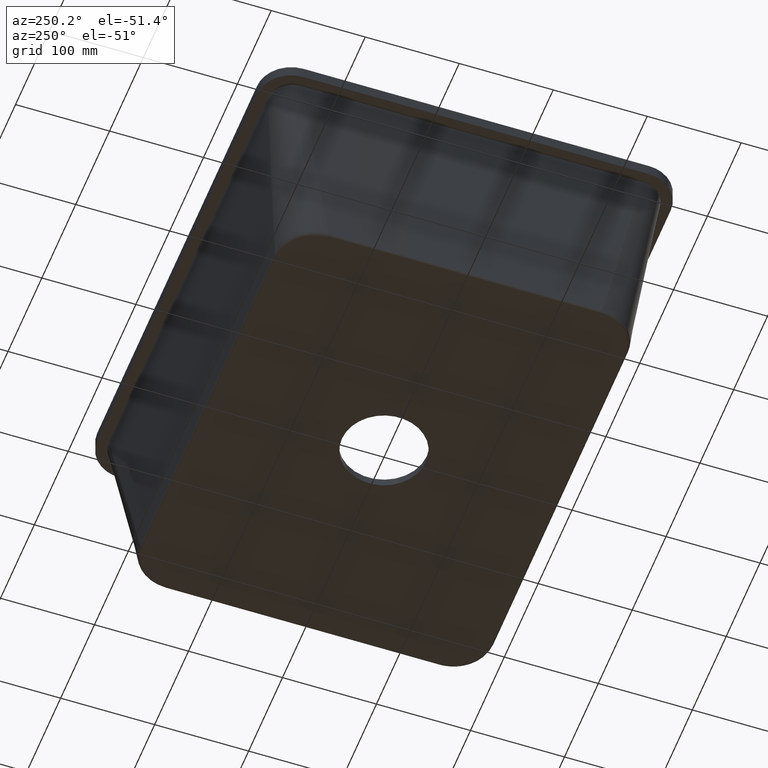
[diagram: clean part render]
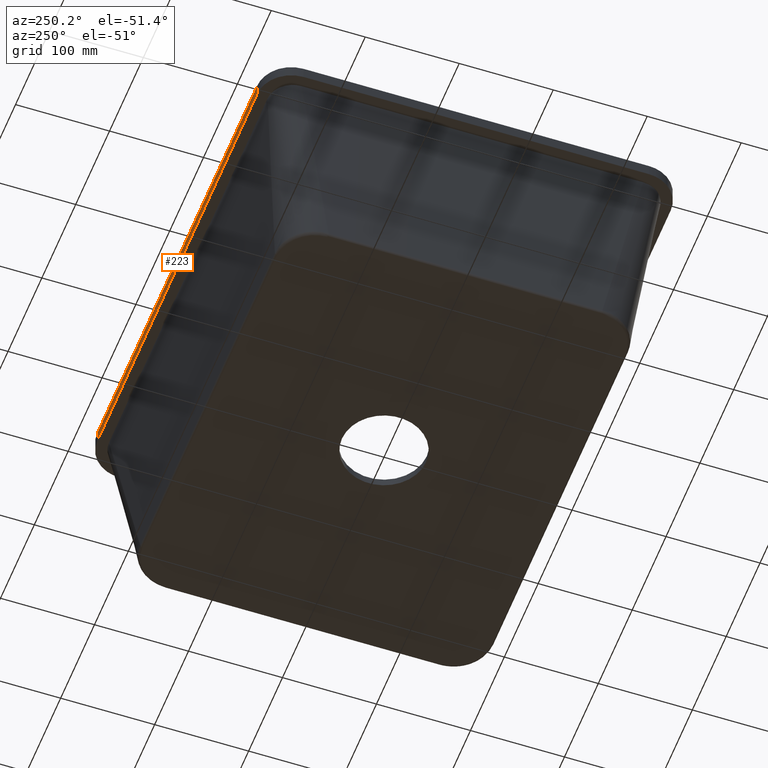
[diagram: same view with one face highlighted and labeled with its STEP entity id]
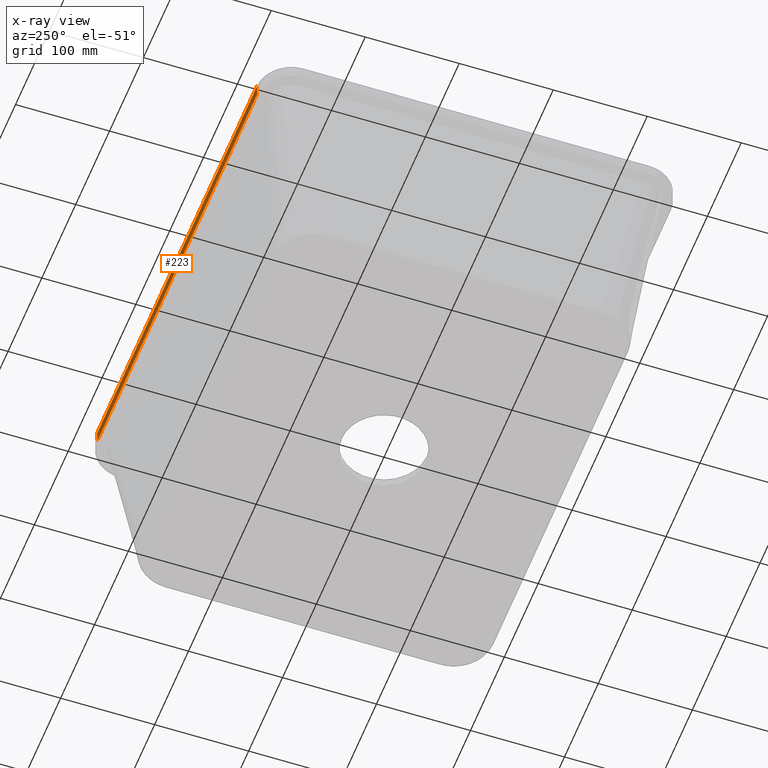
[diagram: x-ray of the same camera — body ghosted, the highlighted face saturated]
A machine part, auxiliary view. The second image highlights one B-rep face of the part: STEP entity #223.
The next image is the same camera in x-ray: the body ghosted, the highlighted face saturated — about 0% of this face is hidden behind the body in this view.
In plain terms, the highlighted planar face has unit normal (0, 1, 0).
Its self-contained STEP definition (entity closure, byte-faithful):
#56=PLANE('',#1236);
#69=LINE('',#15953,#93);
#76=LINE('',#16287,#100);
#77=LINE('',#16319,#101);
#78=LINE('',#16321,#102);
#93=VECTOR('',#1273,1.);
#100=VECTOR('',#1316,1.);
#101=VECTOR('',#1317,1.);
#102=VECTOR('',#1318,1.);
#223=ADVANCED_FACE('',(#293),#56,.T.);
#293=FACE_OUTER_BOUND('',#365,.T.);
#365=EDGE_LOOP('',(#665,#666,#667,#668));
#665=ORIENTED_EDGE('',*,*,#1029,.F.);
#666=ORIENTED_EDGE('',*,*,#1030,.F.);
#667=ORIENTED_EDGE('',*,*,#1027,.T.);
#668=ORIENTED_EDGE('',*,*,#998,.T.);
#842=VERTEX_POINT('',#15952);
#843=VERTEX_POINT('',#15954);
#860=VERTEX_POINT('',#16288);
#861=VERTEX_POINT('',#16320);
#998=EDGE_CURVE('',#843,#842,#69,.T.);
#1027=EDGE_CURVE('',#860,#843,#76,.T.);
#1029=EDGE_CURVE('',#861,#842,#77,.T.);
#1030=EDGE_CURVE('',#860,#861,#78,.T.);
#1236=AXIS2_PLACEMENT_3D('',#16322,#1319,#1320);
#1273=DIRECTION('',(1.,0.,0.));
#1316=DIRECTION('',(0.,0.,1.));
#1317=DIRECTION('',(0.,0.,1.));
#1318=DIRECTION('',(1.,0.,0.));
#1319=DIRECTION('',(0.,1.,0.));
#1320=DIRECTION('',(0.,0.,1.));
#15952=CARTESIAN_POINT('',(236.250864642863,219.999999999892,5.20417042793042E-14));
#15953=CARTESIAN_POINT('',(500.,219.999999999892,0.));
#15954=CARTESIAN_POINT('',(-236.250864642863,219.999999999892,5.20417042793042E-14));
#16287=CARTESIAN_POINT('',(-236.250864642863,219.999999999892,-50.));
#16288=CARTESIAN_POINT('',(-236.250864642863,219.999999999892,-13.));
#16319=CARTESIAN_POINT('',(236.250864642863,219.999999999892,-50.));
#16320=CARTESIAN_POINT('',(236.250864642863,219.999999999892,-13.));
#16321=CARTESIAN_POINT('',(500.,219.999999999892,-13.));
#16322=CARTESIAN_POINT('',(236.250864642863,219.999999999892,-50.));